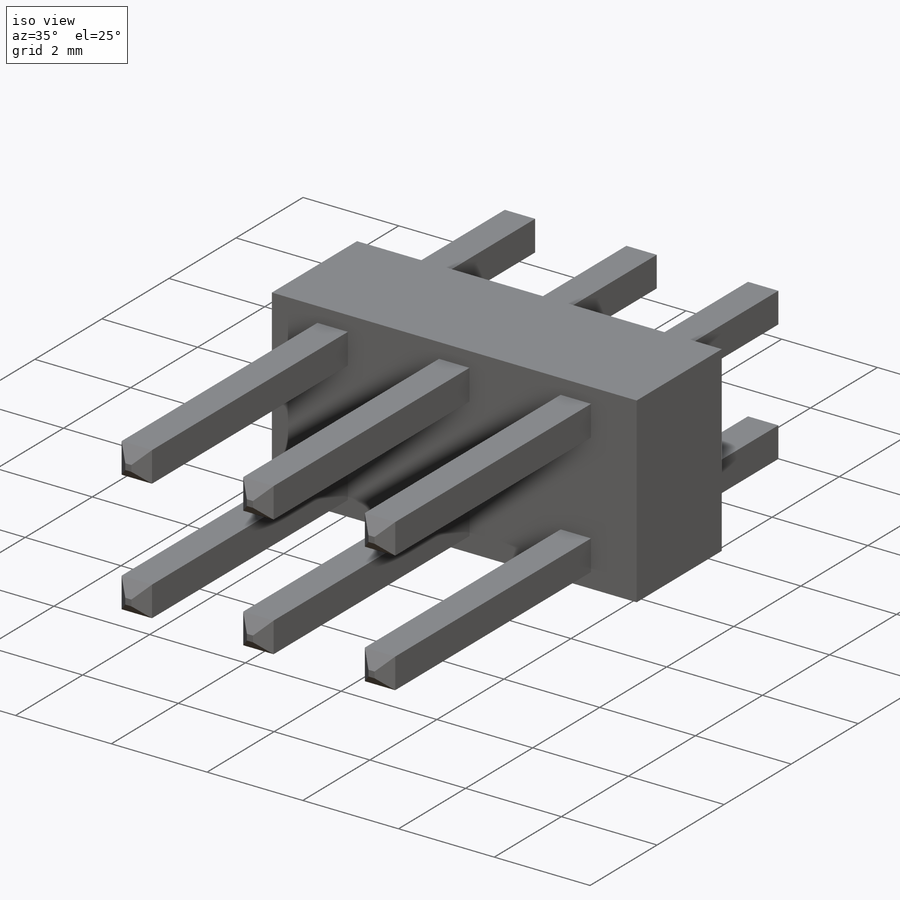
[diagram: iso view]
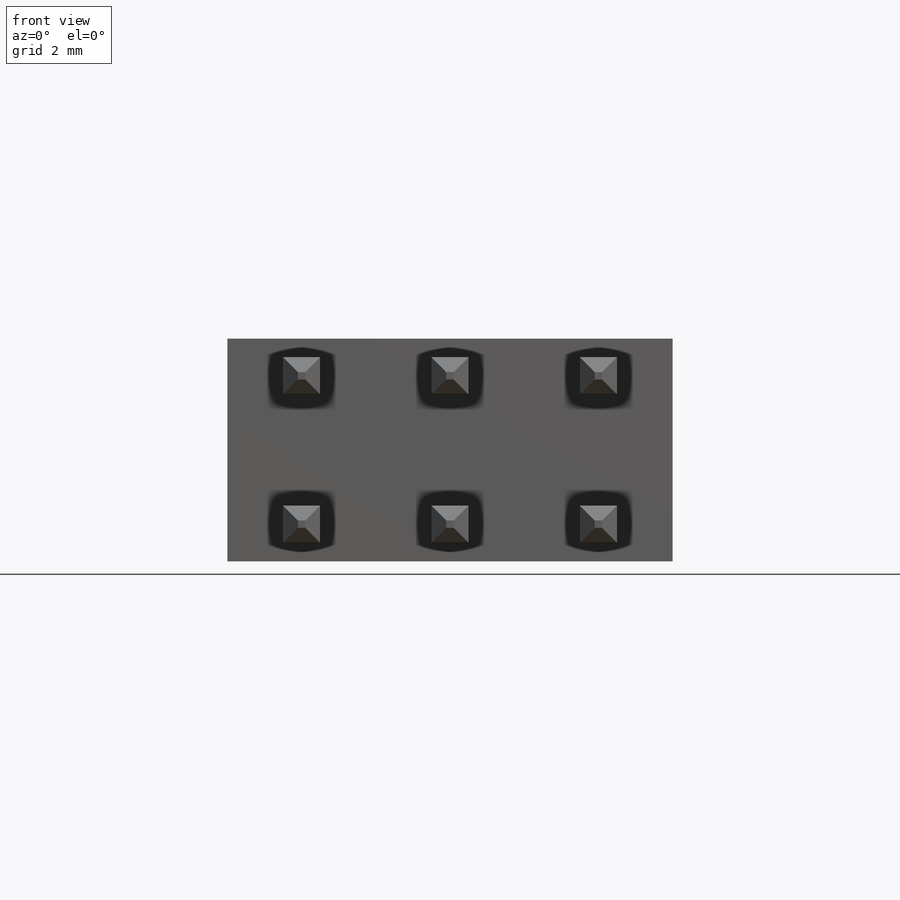
[diagram: front view]
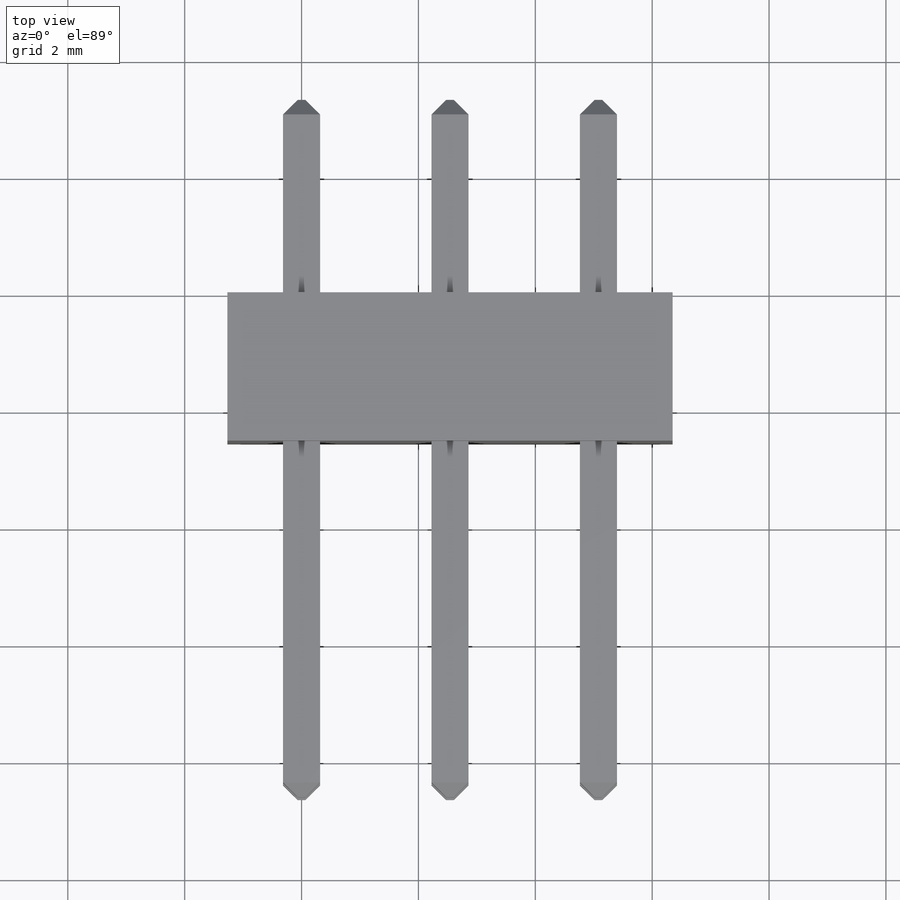
[diagram: top view]
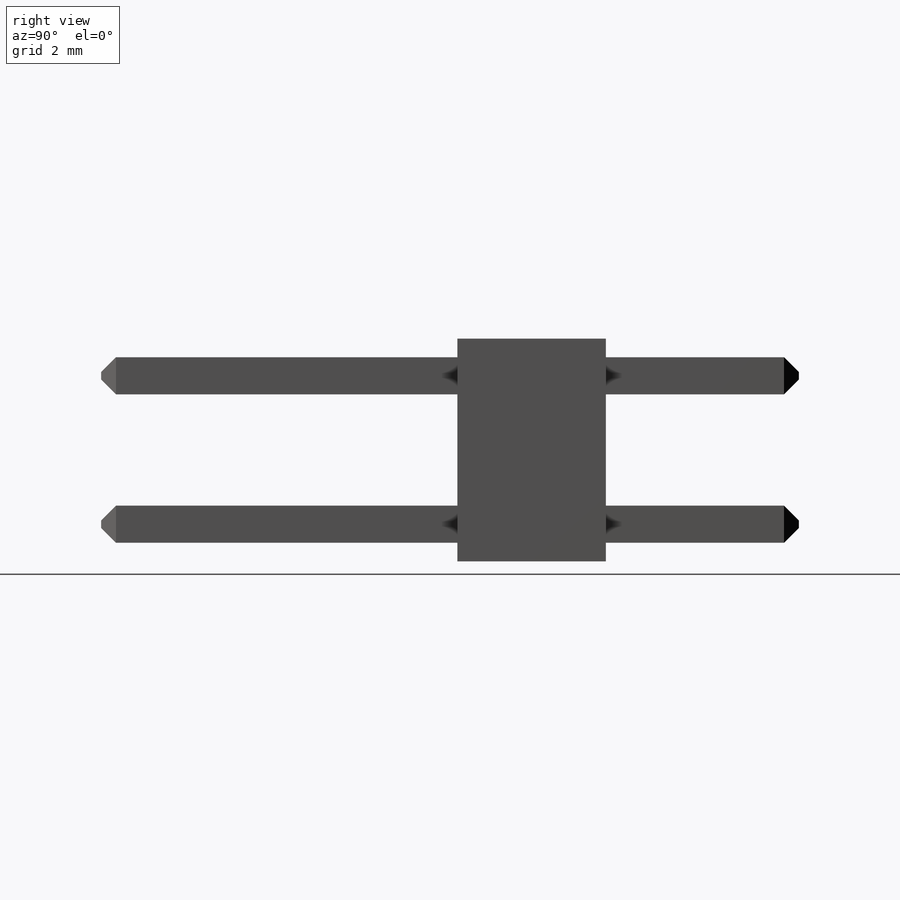
[diagram: right view]
SOLIDWORKS PART (.sldprt)
format: sldprt  version: not decoded by parser v0  size: 282,624 bytes
history: native  units: mm
features: sketch x9, extrude x8, plane x3, material x1, pattern_linear x1, cut_extrude x1 (+8 scaffold rows collapsed)
feature tree (31):
  scaffold x8  (default folders/planes/origin — collapsed)
  material  "Material <not specified>"
  plane  "Plane1"
  plane  "Plane2"
  plane  "Plane3"
  sketch  "Sketch1"  dims[D1=0.635mm]
  extrude  "Base-Extrude"  Depth=0.0254mm
  sketch  "Sketch10"  dims[D1=0.635mm D2=3.175mm D3=1.27mm D4=1.27mm]
  extrude  "Boss-Extrude1"  Depth=2.54mm
  sketch  "Sketch11"  dims[D1=0.635mm D2=0.635mm D3=0.3175mm D4=0.9525mm D5=0.635mm D6=0.635mm D7=0.9525mm D8=1.905mm]
  extrude  "Boss-Extrude2"  Depth=8.382mm
  sketch  "Sketch12"
  extrude  "Boss-Extrude3"  Depth=3.048mm
  sketch  "Sketch13"  dims[D1=0.0mm]
  extrude  "Boss-Extrude4"  Depth=0.254mm
  sketch  "Sketch14"  dims[D1=0.0mm]
  extrude  "Boss-Extrude5"  Depth=0.254mm
  sketch  "Sketch15"  dims[D1=0.0mm]
  extrude  "Boss-Extrude6"  Depth=0.254mm
  sketch  "Sketch16"  dims[D1=0.0mm]
  extrude  "Boss-Extrude7"  Depth=0.254mm
  pattern_linear  "LPattern4"  Count1=3 Count2=1 Spacing1=2.54mm Spacing2=50mm
  sketch  "Sketch17"
  cut_extrude  "Cut-Extrude1"  Depth=4.03352mm
decode coverage: 17 of 19 modeling features carry decoded parameters
note: suppression state not decoded; provenance and decode notes live in map.json
